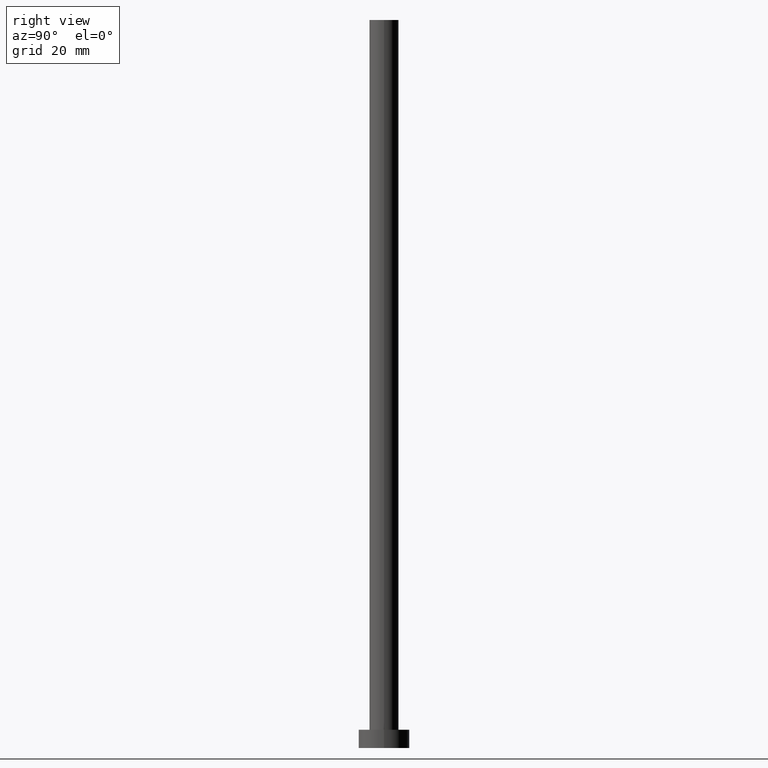
[diagram: clean part render]
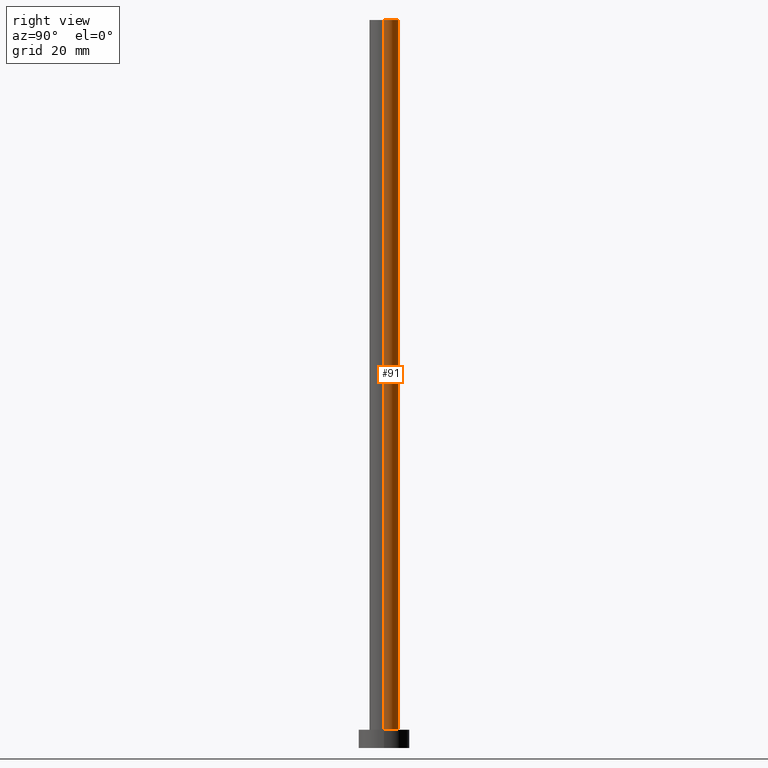
[diagram: same view with one face highlighted and labeled with its STEP entity id]
A machine part, right view. The second image highlights one B-rep face of the part: STEP entity #91.
In plain terms, the highlighted cylindrical surface (edge-blend (fillet) strip) has radius 4 mm, axis along (-0, -0, -1).
Its self-contained STEP definition (entity closure, byte-faithful):
#1 = CIRCLE ( 'NONE', #254, 4.000000000000000000 ) ;
#28 = VERTEX_POINT ( 'NONE', #153 ) ;
#29 = EDGE_CURVE ( 'NONE', #164, #28, #1, .T. ) ;
#30 = DIRECTION ( 'NONE',  ( 0.000000000000000000, 0.000000000000000000, 1.000000000000000000 ) ) ;
#32 = DIRECTION ( 'NONE',  ( -1.000000000000000000, 0.000000000000000000, 0.000000000000000000 ) ) ;
#39 = VECTOR ( 'NONE', #136, 1000.000000000000000 ) ;
#50 = DIRECTION ( 'NONE',  ( 1.000000000000000000, 0.000000000000000000, 0.000000000000000000 ) ) ;
#72 = CARTESIAN_POINT ( 'NONE',  ( -4.000000000000000000, 0.000000000000000000, 200.0000000000000000 ) ) ;
#73 = CARTESIAN_POINT ( 'NONE',  ( 4.000000000000000000, 4.898587196589412829E-16, 200.0000000000000000 ) ) ;
#82 = EDGE_CURVE ( 'NONE', #128, #28, #95, .T. ) ;
#86 = EDGE_CURVE ( 'NONE', #202, #128, #145, .T. ) ;
#91 = ADVANCED_FACE ( 'NONE', ( #113 ), #247, .T. ) ;
#93 = DIRECTION ( 'NONE',  ( 1.000000000000000000, 0.000000000000000000, 0.000000000000000000 ) ) ;
#95 = LINE ( 'NONE', #174, #158 ) ;
#101 = AXIS2_PLACEMENT_3D ( 'NONE', #133, #188, #32 ) ;
#105 = ORIENTED_EDGE ( 'NONE', *, *, #86, .F. ) ;
#113 = FACE_OUTER_BOUND ( 'NONE', #166, .T. ) ;
#116 = CARTESIAN_POINT ( 'NONE',  ( 0.000000000000000000, 0.000000000000000000, 5.000000000000000000 ) ) ;
#128 = VERTEX_POINT ( 'NONE', #72 ) ;
#133 = CARTESIAN_POINT ( 'NONE',  ( 0.000000000000000000, 0.000000000000000000, 200.0000000000000000 ) ) ;
#136 = DIRECTION ( 'NONE',  ( -0.000000000000000000, -0.000000000000000000, -1.000000000000000000 ) ) ;
#145 = CIRCLE ( 'NONE', #218, 4.000000000000000000 ) ;
#146 = ORIENTED_EDGE ( 'NONE', *, *, #82, .F. ) ;
#147 = EDGE_CURVE ( 'NONE', #202, #164, #249, .T. ) ;
#149 = CARTESIAN_POINT ( 'NONE',  ( 0.000000000000000000, 0.000000000000000000, 200.0000000000000000 ) ) ;
#151 = CARTESIAN_POINT ( 'NONE',  ( 4.000000000000000000, 4.898587196589412829E-16, 5.000000000000000000 ) ) ;
#153 = CARTESIAN_POINT ( 'NONE',  ( -4.000000000000000000, 0.000000000000000000, 5.000000000000000000 ) ) ;
#158 = VECTOR ( 'NONE', #211, 1000.000000000000000 ) ;
#164 = VERTEX_POINT ( 'NONE', #151 ) ;
#166 = EDGE_LOOP ( 'NONE', ( #105, #200, #199, #146 ) ) ;
#174 = CARTESIAN_POINT ( 'NONE',  ( -4.000000000000000000, 0.000000000000000000, 200.0000000000000000 ) ) ;
#188 = DIRECTION ( 'NONE',  ( -0.000000000000000000, -0.000000000000000000, -1.000000000000000000 ) ) ;
#199 = ORIENTED_EDGE ( 'NONE', *, *, #29, .T. ) ;
#200 = ORIENTED_EDGE ( 'NONE', *, *, #147, .T. ) ;
#202 = VERTEX_POINT ( 'NONE', #73 ) ;
#206 = DIRECTION ( 'NONE',  ( 0.000000000000000000, 0.000000000000000000, 1.000000000000000000 ) ) ;
#211 = DIRECTION ( 'NONE',  ( -0.000000000000000000, -0.000000000000000000, -1.000000000000000000 ) ) ;
#218 = AXIS2_PLACEMENT_3D ( 'NONE', #149, #206, #93 ) ;
#230 = CARTESIAN_POINT ( 'NONE',  ( 4.000000000000000000, 4.898587196589412829E-16, 200.0000000000000000 ) ) ;
#247 = CYLINDRICAL_SURFACE ( 'NONE', #101, 4.000000000000000000 ) ;
#249 = LINE ( 'NONE', #230, #39 ) ;
#254 = AXIS2_PLACEMENT_3D ( 'NONE', #116, #30, #50 ) ;